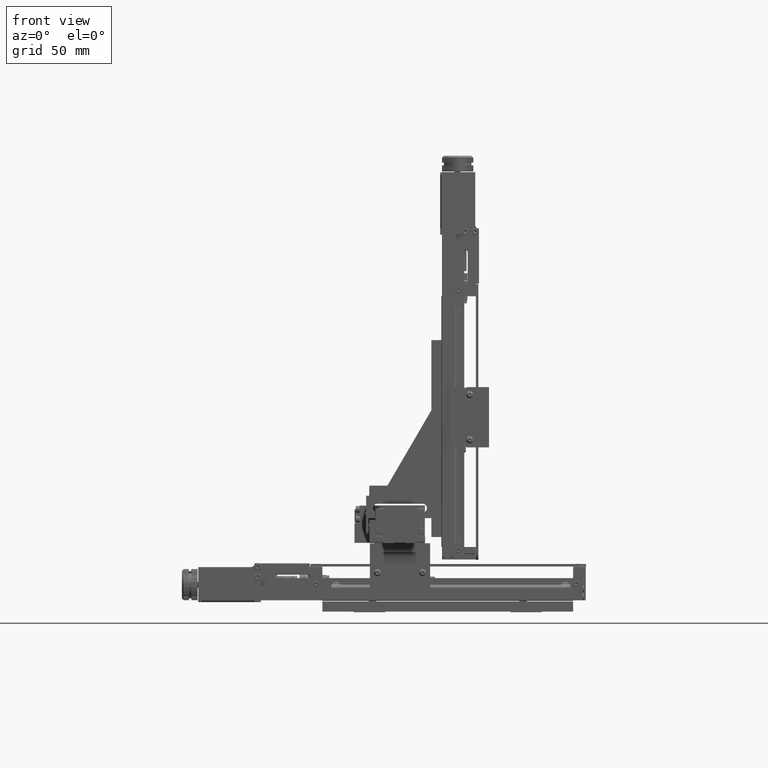
[diagram: clean part render]
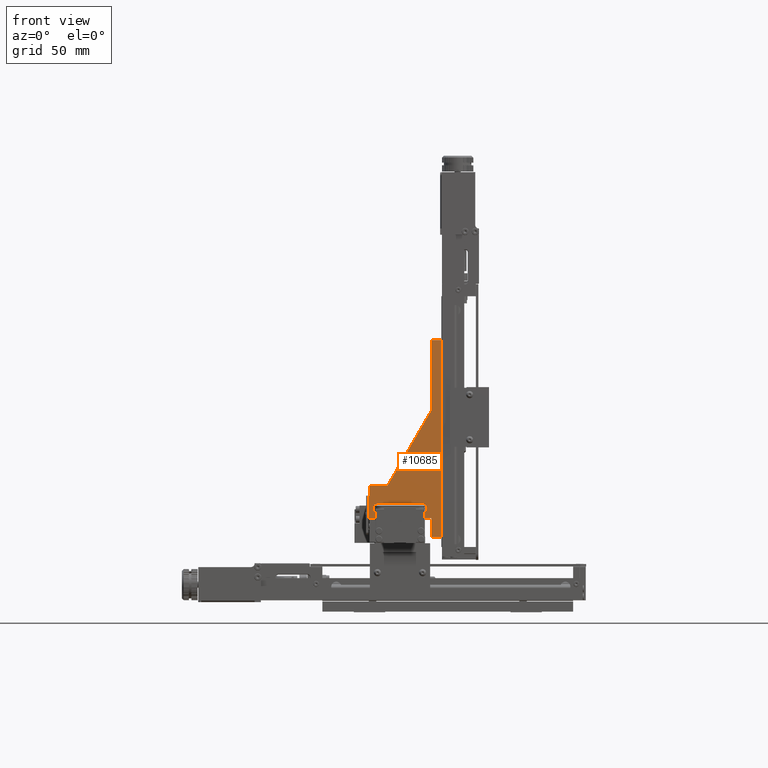
[diagram: same view with one face highlighted and labeled with its STEP entity id]
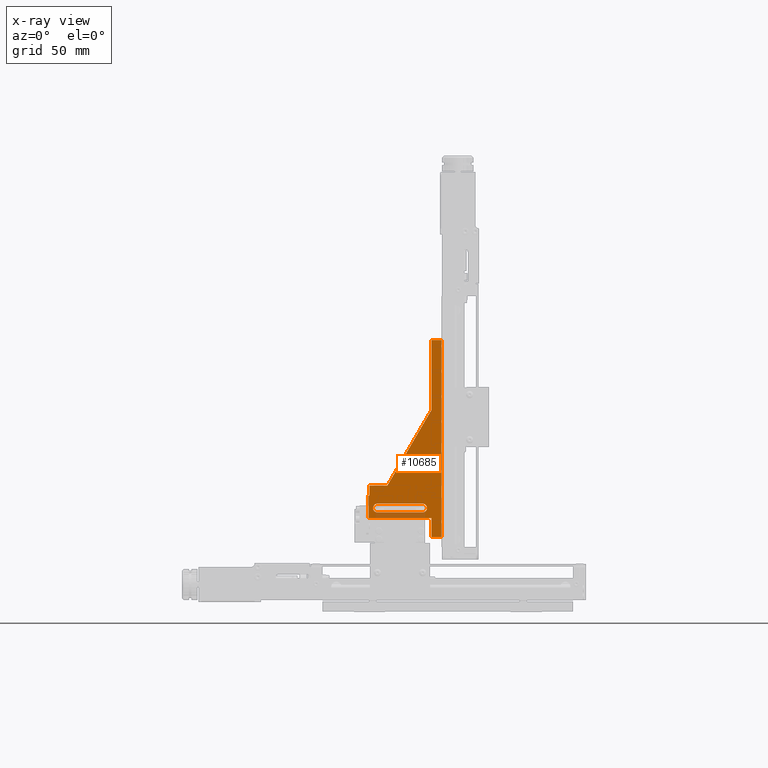
[diagram: x-ray of the same camera — body ghosted, the highlighted face saturated]
A machine part, front view. The second image highlights one B-rep face of the part: STEP entity #10685.
The next image is the same camera in x-ray: the body ghosted, the highlighted face saturated — about 5% of this face is hidden behind the body in this view.
In plain terms, the highlighted planar face has unit normal (0, -1, 0).
Its self-contained STEP definition (entity closure, byte-faithful):
#508=FACE_BOUND('',#24703,.T.);
#4785=PLANE('',#124292);
#10685=ADVANCED_FACE('',(#17447,#508),#4785,.T.);
#17447=FACE_OUTER_BOUND('',#24702,.T.);
#24702=EDGE_LOOP('',(#56614,#56615,#56616,#56617,#56618,#56619,#56620,#56621,
#56622,#56623,#56624));
#24703=EDGE_LOOP('',(#56625,#56626,#56627,#56628));
#56614=ORIENTED_EDGE('',*,*,#80895,.T.);
#56615=ORIENTED_EDGE('',*,*,#71080,.F.);
#56616=ORIENTED_EDGE('',*,*,#71081,.T.);
#56617=ORIENTED_EDGE('',*,*,#70858,.T.);
#56618=ORIENTED_EDGE('',*,*,#71154,.F.);
#56619=ORIENTED_EDGE('',*,*,#71064,.F.);
#56620=ORIENTED_EDGE('',*,*,#71075,.F.);
#56621=ORIENTED_EDGE('',*,*,#70984,.T.);
#56622=ORIENTED_EDGE('',*,*,#70987,.T.);
#56623=ORIENTED_EDGE('',*,*,#71049,.F.);
#56624=ORIENTED_EDGE('',*,*,#81086,.F.);
#56625=ORIENTED_EDGE('',*,*,#80963,.T.);
#56626=ORIENTED_EDGE('',*,*,#81091,.T.);
#56627=ORIENTED_EDGE('',*,*,#81082,.T.);
#56628=ORIENTED_EDGE('',*,*,#81078,.T.);
#70858=EDGE_CURVE('',#108117,#108116,#88719,.T.);
#70984=EDGE_CURVE('',#108207,#108213,#88777,.T.);
#70987=EDGE_CURVE('',#108213,#108255,#88780,.T.);
#71049=EDGE_CURVE('',#108298,#108255,#88793,.T.);
#71064=EDGE_CURVE('',#108310,#108311,#88802,.T.);
#71075=EDGE_CURVE('',#108207,#108310,#88807,.T.);
#71080=EDGE_CURVE('',#108335,#108332,#88812,.T.);
#71081=EDGE_CURVE('',#108335,#108117,#88813,.T.);
#71154=EDGE_CURVE('',#108311,#108116,#88832,.T.);
#80895=EDGE_CURVE('',#115005,#108332,#95624,.T.);
#80963=EDGE_CURVE('',#115058,#115057,#102616,.T.);
#81078=EDGE_CURVE('',#115123,#115058,#95681,.T.);
#81082=EDGE_CURVE('',#115125,#115123,#102707,.T.);
#81086=EDGE_CURVE('',#115005,#108298,#95687,.T.);
#81091=EDGE_CURVE('',#115057,#115125,#95692,.T.);
#88719=B_SPLINE_CURVE_WITH_KNOTS('',1,(#188373,#188374),.UNSPECIFIED.,.F.,
 .F.,(2,2),(-156.999999999999,0.),.UNSPECIFIED.);
#88777=B_SPLINE_CURVE_WITH_KNOTS('',1,(#188705,#188706),.UNSPECIFIED.,.F.,
 .F.,(2,2),(-14.5000000000001,0.),.UNSPECIFIED.);
#88780=B_SPLINE_CURVE_WITH_KNOTS('',1,(#188711,#188712),.UNSPECIFIED.,.F.,
 .F.,(2,2),(-8.,0.),.UNSPECIFIED.);
#88793=B_SPLINE_CURVE_WITH_KNOTS('',1,(#188894,#188895),.UNSPECIFIED.,.F.,
 .F.,(2,2),(0.,0.499999999998892),.UNSPECIFIED.);
#88802=B_SPLINE_CURVE_WITH_KNOTS('',1,(#188930,#188931),.UNSPECIFIED.,.F.,
 .F.,(2,2),(0.,55.9999999999989),.UNSPECIFIED.);
#88807=B_SPLINE_CURVE_WITH_KNOTS('',1,(#188958,#188959),.UNSPECIFIED.,.F.,
 .F.,(2,2),(0.,69.462219947249),.UNSPECIFIED.);
#88812=B_SPLINE_CURVE_WITH_KNOTS('',1,(#188968,#188969),.UNSPECIFIED.,.F.,
 .F.,(2,2),(0.,15.0000000000016),.UNSPECIFIED.);
#88813=B_SPLINE_CURVE_WITH_KNOTS('',1,(#188970,#188971),.UNSPECIFIED.,.F.,
 .F.,(2,2),(-8.,0.),.UNSPECIFIED.);
#88832=B_SPLINE_CURVE_WITH_KNOTS('',1,(#189254,#189255),.UNSPECIFIED.,.F.,
 .F.,(2,2),(0.,8.),.UNSPECIFIED.);
#95624=B_SPLINE_CURVE_WITH_KNOTS('',1,(#217090,#217091),.UNSPECIFIED.,.F.,
 .F.,(2,2),(-50.,0.),.UNSPECIFIED.);
#95681=B_SPLINE_CURVE_WITH_KNOTS('',1,(#217792,#217793),.UNSPECIFIED.,.F.,
 .F.,(2,2),(-36.,0.),.UNSPECIFIED.);
#95687=B_SPLINE_CURVE_WITH_KNOTS('',1,(#217814,#217815),.UNSPECIFIED.,.F.,
 .F.,(2,2),(0.,18.),.UNSPECIFIED.);
#95692=B_SPLINE_CURVE_WITH_KNOTS('',1,(#217824,#217825),.UNSPECIFIED.,.F.,
 .F.,(2,2),(0.,36.),.UNSPECIFIED.);
#102616=(
BOUNDED_CURVE()
B_SPLINE_CURVE(2,(#217402,#217403,#217404,#217405,#217406),
 .UNSPECIFIED.,.F.,.F.)
B_SPLINE_CURVE_WITH_KNOTS((3,2,3),(-10.9955742875643,-5.49778714378214,
0.),.UNSPECIFIED.)
CURVE()
GEOMETRIC_REPRESENTATION_ITEM()
RATIONAL_B_SPLINE_CURVE((1.,0.707106781186545,1.,0.707106781186545,1.))
REPRESENTATION_ITEM('')
);
#102707=(
BOUNDED_CURVE()
B_SPLINE_CURVE(2,(#217803,#217804,#217805,#217806,#217807),
 .UNSPECIFIED.,.F.,.F.)
B_SPLINE_CURVE_WITH_KNOTS((3,2,3),(-10.9955742875643,-5.49778714378214,
0.),.UNSPECIFIED.)
CURVE()
GEOMETRIC_REPRESENTATION_ITEM()
RATIONAL_B_SPLINE_CURVE((1.,0.707106781186548,1.,0.707106781186548,1.))
REPRESENTATION_ITEM('')
);
#108116=VERTEX_POINT('',#163110);
#108117=VERTEX_POINT('',#163111);
#108207=VERTEX_POINT('',#163201);
#108213=VERTEX_POINT('',#163207);
#108255=VERTEX_POINT('',#163249);
#108298=VERTEX_POINT('',#163292);
#108310=VERTEX_POINT('',#163304);
#108311=VERTEX_POINT('',#163305);
#108332=VERTEX_POINT('',#163326);
#108335=VERTEX_POINT('',#163329);
#115005=VERTEX_POINT('',#169999);
#115057=VERTEX_POINT('',#170051);
#115058=VERTEX_POINT('',#170052);
#115123=VERTEX_POINT('',#170117);
#115125=VERTEX_POINT('',#170119);
#124292=AXIS2_PLACEMENT_3D('',#150583,#130467,$);
#130467=DIRECTION('',(0.,-1.,0.));
#150583=CARTESIAN_POINT('',(-18.1639077799961,-51.6223779737213,44.1780205352372));
#163110=CARTESIAN_POINT('',(45.756092220008,-51.6223779737318,216.998020535237));
#163111=CARTESIAN_POINT('',(45.7560922200077,-51.6223779737234,59.9980205352372));
#163201=CARTESIAN_POINT('',(2.75609222000738,-51.6223779737241,100.99802053524));
#163207=CARTESIAN_POINT('',(-11.7439077799927,-51.6223779737243,100.99802053524));
#163249=CARTESIAN_POINT('',(-11.7439077799929,-51.6223779737239,92.9980205352399));
#163292=CARTESIAN_POINT('',(-12.2439077799918,-51.622377973723,92.9980205352399));
#163304=CARTESIAN_POINT('',(37.7560922200086,-51.6223779737279,160.998020535239));
#163305=CARTESIAN_POINT('',(37.756092220008,-51.6223779737316,216.998020535238));
#163326=CARTESIAN_POINT('',(37.7560922200078,-51.6223779737233,74.9980205352388));
#163329=CARTESIAN_POINT('',(37.7560922200076,-51.6223779737231,59.9980205352372));
#169999=CARTESIAN_POINT('',(-12.2439077799922,-51.6223779737225,74.99802053524));
#170051=CARTESIAN_POINT('',(-5.24390777999193,-51.6223779737229,86.4980205352398));
#170052=CARTESIAN_POINT('',(-5.24390777999214,-51.6223779737226,79.4980205352398));
#170117=CARTESIAN_POINT('',(30.7560922200079,-51.6223779737234,79.498020535239));
#170119=CARTESIAN_POINT('',(30.7560922200081,-51.6223779737236,86.498020535239));
#188373=CARTESIAN_POINT('',(45.7560922200077,-51.6223779737234,59.9980205352372));
#188374=CARTESIAN_POINT('',(45.756092220008,-51.6223779737318,216.998020535237));
#188705=CARTESIAN_POINT('',(2.75609222000738,-51.6223779737241,100.99802053524));
#188706=CARTESIAN_POINT('',(-11.7439077799927,-51.6223779737243,100.99802053524));
#188711=CARTESIAN_POINT('',(-11.7439077799927,-51.6223779737243,100.99802053524));
#188712=CARTESIAN_POINT('',(-11.7439077799929,-51.6223779737239,92.9980205352399));
#188894=CARTESIAN_POINT('',(-12.2439077799918,-51.622377973723,92.9980205352399));
#188895=CARTESIAN_POINT('',(-11.7439077799929,-51.6223779737239,92.9980205352399));
#188930=CARTESIAN_POINT('',(37.7560922200086,-51.6223779737279,160.998020535239));
#188931=CARTESIAN_POINT('',(37.756092220008,-51.6223779737316,216.998020535238));
#188958=CARTESIAN_POINT('',(2.75609222000738,-51.6223779737241,100.99802053524));
#188959=CARTESIAN_POINT('',(37.7560922200086,-51.6223779737279,160.998020535239));
#188968=CARTESIAN_POINT('',(37.7560922200076,-51.6223779737231,59.9980205352372));
#188969=CARTESIAN_POINT('',(37.7560922200078,-51.6223779737233,74.9980205352388));
#188970=CARTESIAN_POINT('',(37.7560922200076,-51.6223779737231,59.9980205352372));
#188971=CARTESIAN_POINT('',(45.7560922200077,-51.6223779737234,59.9980205352372));
#189254=CARTESIAN_POINT('',(37.756092220008,-51.6223779737316,216.998020535238));
#189255=CARTESIAN_POINT('',(45.756092220008,-51.6223779737318,216.998020535237));
#217090=CARTESIAN_POINT('',(-12.2439077799922,-51.6223779737225,74.99802053524));
#217091=CARTESIAN_POINT('',(37.7560922200078,-51.6223779737233,74.9980205352388));
#217402=CARTESIAN_POINT('',(-5.24390777999214,-51.6223779737226,79.4980205352398));
#217403=CARTESIAN_POINT('',(-8.74390777999217,-51.6223779737226,79.4980205352398));
#217404=CARTESIAN_POINT('',(-8.74390777999206,-51.6223779737227,82.9980205352399));
#217405=CARTESIAN_POINT('',(-8.74390777999195,-51.6223779737229,86.4980205352399));
#217406=CARTESIAN_POINT('',(-5.24390777999193,-51.6223779737229,86.4980205352398));
#217792=CARTESIAN_POINT('',(30.7560922200079,-51.6223779737234,79.498020535239));
#217793=CARTESIAN_POINT('',(-5.24390777999214,-51.6223779737226,79.4980205352398));
#217803=CARTESIAN_POINT('',(30.7560922200081,-51.6223779737236,86.498020535239));
#217804=CARTESIAN_POINT('',(34.2560922200081,-51.6223779737236,86.4980205352389));
#217805=CARTESIAN_POINT('',(34.256092220008,-51.6223779737235,82.9980205352389));
#217806=CARTESIAN_POINT('',(34.2560922200079,-51.6223779737234,79.4980205352389));
#217807=CARTESIAN_POINT('',(30.7560922200079,-51.6223779737234,79.498020535239));
#217814=CARTESIAN_POINT('',(-12.2439077799922,-51.6223779737225,74.99802053524));
#217815=CARTESIAN_POINT('',(-12.2439077799918,-51.622377973723,92.9980205352399));
#217824=CARTESIAN_POINT('',(-5.24390777999193,-51.6223779737229,86.4980205352398));
#217825=CARTESIAN_POINT('',(30.7560922200081,-51.6223779737236,86.498020535239));